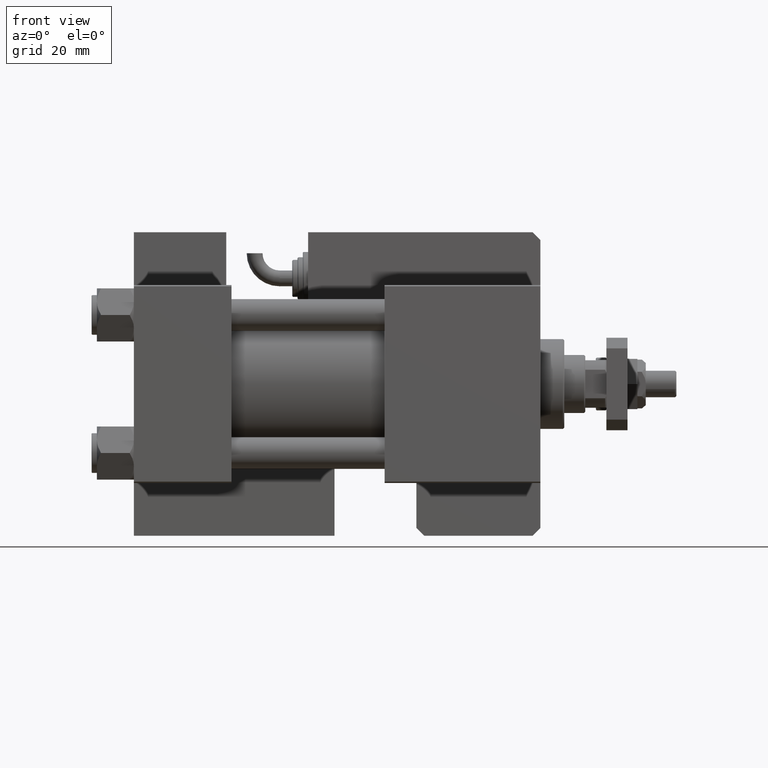
[diagram: clean part render]
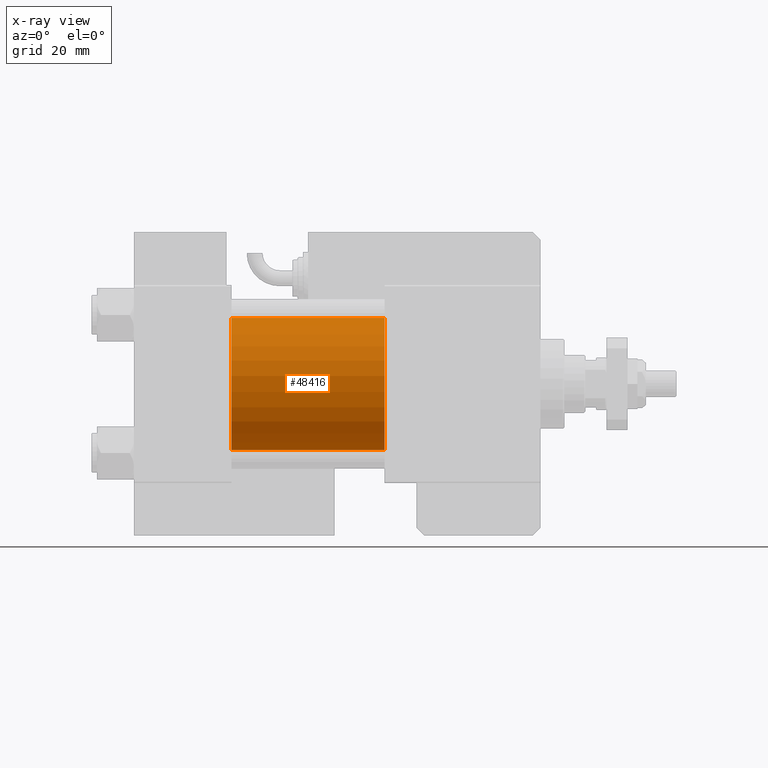
[diagram: x-ray — body ghosted, one internal face saturated and labeled with its STEP entity id]
A machine part, front view, then the same camera in x-ray: the body is ghosted and one INTERNAL B-rep face — a face not visible from any outside direction — is saturated and labeled: STEP entity #48416.
In plain terms, the highlighted cylindrical surface (partial cylindrical patch) has radius 25 mm, axis along (-1, -0, -0).
Its self-contained STEP definition (entity closure, byte-faithful):
#57 = DIRECTION ( 'NONE',  ( 0.000000000000000000, 0.000000000000000000, -1.000000000000000000 ) ) ;
#355 = DIRECTION ( 'NONE',  ( -1.000000000000000000, -0.000000000000000000, -0.000000000000000000 ) ) ;
#991 = ORIENTED_EDGE ( 'NONE', *, *, #1848, .F. ) ;
#1848 = EDGE_CURVE ( 'NONE', #11398, #22622, #27439, .T. ) ;
#3701 = CIRCLE ( 'NONE', #35307, 25.00000000000000000 ) ;
#8650 = LINE ( 'NONE', #12333, #24389 ) ;
#10501 = DIRECTION ( 'NONE',  ( -1.000000000000000000, -0.000000000000000000, -0.000000000000000000 ) ) ;
#11398 = VERTEX_POINT ( 'NONE', #22877 ) ;
#12333 = CARTESIAN_POINT ( 'NONE',  ( 95.00000000000000000, -2.602085213965210642E-15, 25.00000000000000000 ) ) ;
#12898 = ORIENTED_EDGE ( 'NONE', *, *, #36278, .T. ) ;
#13963 = VECTOR ( 'NONE', #355, 1000.000000000000000 ) ;
#19721 = VERTEX_POINT ( 'NONE', #38391 ) ;
#20438 = VERTEX_POINT ( 'NONE', #27688 ) ;
#22622 = VERTEX_POINT ( 'NONE', #51631 ) ;
#22707 = EDGE_CURVE ( 'NONE', #19721, #11398, #8650, .T. ) ;
#22877 = CARTESIAN_POINT ( 'NONE',  ( 37.00000000000000000, -2.602085213965210642E-15, 25.00000000000000000 ) ) ;
#23804 = CARTESIAN_POINT ( 'NONE',  ( 95.00000000000000000, -2.602085213965210642E-15, 0.000000000000000000 ) ) ;
#23983 = EDGE_CURVE ( 'NONE', #19721, #20438, #3701, .T. ) ;
#24389 = VECTOR ( 'NONE', #30426, 1000.000000000000000 ) ;
#25920 = ORIENTED_EDGE ( 'NONE', *, *, #22707, .F. ) ;
#26063 = CARTESIAN_POINT ( 'NONE',  ( 37.00000000000000000, -2.602085213965210642E-15, 0.000000000000000000 ) ) ;
#27439 = CIRCLE ( 'NONE', #54508, 25.00000000000000000 ) ;
#27688 = CARTESIAN_POINT ( 'NONE',  ( 95.00000000000000000, 4.595317839031718093E-16, -25.00000000000000000 ) ) ;
#27763 = CARTESIAN_POINT ( 'NONE',  ( 95.00000000000000000, -2.602085213965210642E-15, 0.000000000000000000 ) ) ;
#28071 = DIRECTION ( 'NONE',  ( 0.000000000000000000, 0.000000000000000000, -1.000000000000000000 ) ) ;
#30426 = DIRECTION ( 'NONE',  ( -1.000000000000000000, -0.000000000000000000, -0.000000000000000000 ) ) ;
#31444 = CYLINDRICAL_SURFACE ( 'NONE', #43879, 25.00000000000000000 ) ;
#35307 = AXIS2_PLACEMENT_3D ( 'NONE', #23804, #37381, #28071 ) ;
#36278 = EDGE_CURVE ( 'NONE', #20438, #22622, #43047, .T. ) ;
#37381 = DIRECTION ( 'NONE',  ( 1.000000000000000000, 0.000000000000000000, 0.000000000000000000 ) ) ;
#38391 = CARTESIAN_POINT ( 'NONE',  ( 95.00000000000000000, -2.602085213965210642E-15, 25.00000000000000000 ) ) ;
#43047 = LINE ( 'NONE', #44159, #13963 ) ;
#43879 = AXIS2_PLACEMENT_3D ( 'NONE', #27763, #10501, #53215 ) ;
#44159 = CARTESIAN_POINT ( 'NONE',  ( 95.00000000000000000, 4.595317839031718093E-16, -25.00000000000000000 ) ) ;
#47828 = DIRECTION ( 'NONE',  ( 1.000000000000000000, 0.000000000000000000, 0.000000000000000000 ) ) ;
#48416 = ADVANCED_FACE ( 'NONE', ( #49512 ), #31444, .F. ) ;
#48715 = EDGE_LOOP ( 'NONE', ( #49598, #12898, #991, #25920 ) ) ;
#49512 = FACE_OUTER_BOUND ( 'NONE', #48715, .T. ) ;
#49598 = ORIENTED_EDGE ( 'NONE', *, *, #23983, .T. ) ;
#51631 = CARTESIAN_POINT ( 'NONE',  ( 37.00000000000000000, 4.595317839031718093E-16, -25.00000000000000000 ) ) ;
#53215 = DIRECTION ( 'NONE',  ( 0.000000000000000000, 0.000000000000000000, 1.000000000000000000 ) ) ;
#54508 = AXIS2_PLACEMENT_3D ( 'NONE', #26063, #47828, #57 ) ;